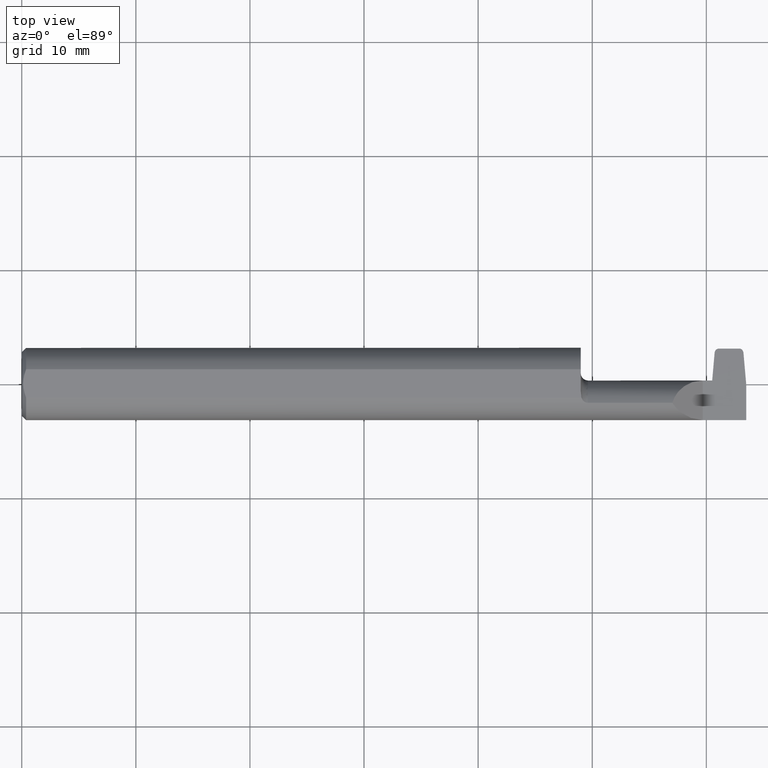
[diagram: clean part render]
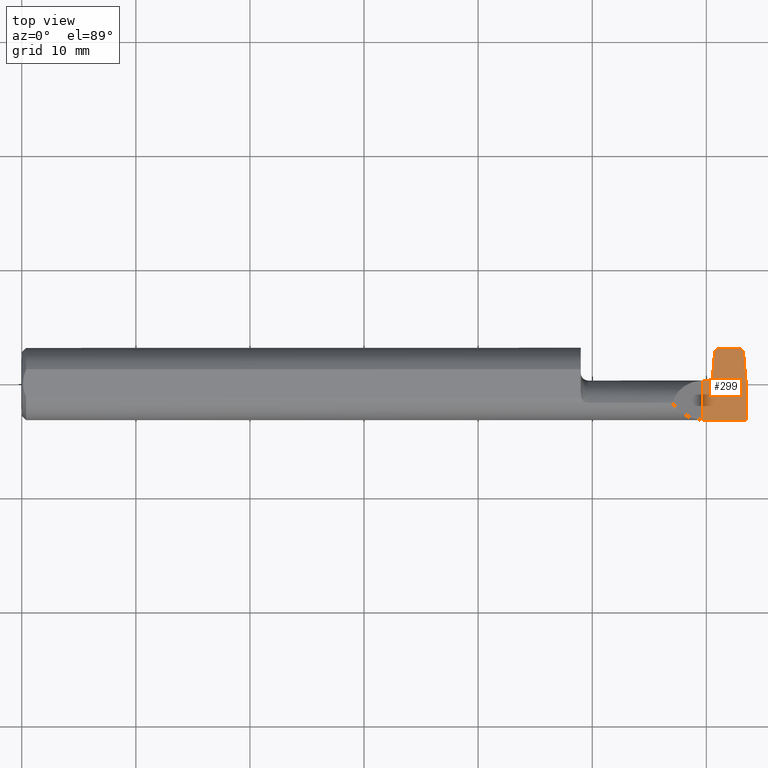
[diagram: same view with one face highlighted and labeled with its STEP entity id]
A machine part, top view. The second image highlights one B-rep face of the part: STEP entity #299.
In plain terms, the highlighted planar face has unit normal (-0, 0, -1).
Its self-contained STEP definition (entity closure, byte-faithful):
#8 = FACE_OUTER_BOUND ( 'NONE', #571, .T. ) ;
#18 = CARTESIAN_POINT ( 'NONE',  ( 2.350000000000000089, 0.1250000000000000000, -2.465075339897404302E-17 ) ) ;
#42 = ORIENTED_EDGE ( 'NONE', *, *, #581, .T. ) ;
#76 = LINE ( 'NONE', #733, #867 ) ;
#78 = CARTESIAN_POINT ( 'NONE',  ( 2.350000000000000089, -0.1248500000000000026, -2.465075339897404302E-17 ) ) ;
#83 = DIRECTION ( 'NONE',  ( -1.000000000000000000, 2.748415254070958379E-15, 0.000000000000000000 ) ) ;
#95 = EDGE_CURVE ( 'NONE', #348, #768, #264, .T. ) ;
#97 = CARTESIAN_POINT ( 'NONE',  ( 2.382440164071409239, 0.01215000000000003230, 0.000000000000000000 ) ) ;
#111 = LINE ( 'NONE', #171, #735 ) ;
#115 = ORIENTED_EDGE ( 'NONE', *, *, #687, .F. ) ;
#116 = DIRECTION ( 'NONE',  ( 0.08715574274765244822, 0.9961946980917459893, 0.000000000000000000 ) ) ;
#121 = CARTESIAN_POINT ( 'NONE',  ( 2.390849541543781154, 0.1082696243428798999, 0.000000000000000000 ) ) ;
#131 = CARTESIAN_POINT ( 'NONE',  ( 2.483716296193213768, 0.1221499999999995228, -1.707404996040164203E-17 ) ) ;
#144 = CARTESIAN_POINT ( 'NONE',  ( 2.500000000000000000, -0.1248499999999999888, -2.465075339897403686E-17 ) ) ;
#152 = CARTESIAN_POINT ( 'NONE',  ( 2.350000000000000089, 0.1250000000000000000, -2.465075339897404302E-17 ) ) ;
#156 = CARTESIAN_POINT ( 'NONE',  ( 2.500000000000000000, -0.1248500000000000026, -2.465075339897404302E-17 ) ) ;
#171 = CARTESIAN_POINT ( 'NONE',  ( 2.500000000000000000, 0.1250000000000000000, -2.465075339897404302E-17 ) ) ;
#175 = LINE ( 'NONE', #854, #513 ) ;
#182 = VERTEX_POINT ( 'NONE', #156 ) ;
#185 = CARTESIAN_POINT ( 'NONE',  ( 2.405414880592574800, 0.1221499999999999669, -2.465075339897404302E-17 ) ) ;
#201 = DIRECTION ( 'NONE',  ( 0.08715574274765255924, -0.9961946980917459893, 0.000000000000000000 ) ) ;
#203 = AXIS2_PLACEMENT_3D ( 'NONE', #18, #749, #817 ) ;
#209 = ORIENTED_EDGE ( 'NONE', *, *, #254, .F. ) ;
#214 = ORIENTED_EDGE ( 'NONE', *, *, #807, .F. ) ;
#218 = VERTEX_POINT ( 'NONE', #599 ) ;
#222 = VERTEX_POINT ( 'NONE', #78 ) ;
#224 = ORIENTED_EDGE ( 'NONE', *, *, #691, .T. ) ;
#233 = ORIENTED_EDGE ( 'NONE', *, *, #742, .F. ) ;
#243 = ORIENTED_EDGE ( 'NONE', *, *, #565, .T. ) ;
#254 = EDGE_CURVE ( 'NONE', #222, #348, #343, .T. ) ;
#264 = LINE ( 'NONE', #452, #763 ) ;
#266 = CARTESIAN_POINT ( 'NONE',  ( 2.381440164071409349, 0.01215000000000003577, 0.000000000000000000 ) ) ;
#267 = VECTOR ( 'NONE', #478, 39.37007874015748143 ) ;
#270 = CARTESIAN_POINT ( 'NONE',  ( 2.475712953525945892, 0.1221499999999997865, -2.465075339897404302E-17 ) ) ;
#287 = ORIENTED_EDGE ( 'NONE', *, *, #554, .F. ) ;
#292 = CARTESIAN_POINT ( 'NONE',  ( 2.350000000000000089, 0.1221500000000001196, -2.465075339897404302E-17 ) ) ;
#299 = ADVANCED_FACE ( 'NONE', ( #8 ), #610, .F. ) ;
#317 = CARTESIAN_POINT ( 'NONE',  ( 2.391577508731532742, 0.1165903273735736934, -3.414809992080329023E-17 ) ) ;
#343 = LINE ( 'NONE', #152, #755 ) ;
#344 = VERTEX_POINT ( 'NONE', #615 ) ;
#348 = VERTEX_POINT ( 'NONE', #544 ) ;
#359 = CARTESIAN_POINT ( 'NONE',  ( 2.500000000000000000, -0.002850000000000199596, 0.000000000000000000 ) ) ;
#364 = ORIENTED_EDGE ( 'NONE', *, *, #95, .F. ) ;
#385 = DIRECTION ( 'NONE',  ( -0.000000000000000000, 1.000000000000000000, -0.000000000000000000 ) ) ;
#396 = DIRECTION ( 'NONE',  ( 1.000000000000000000, -2.134256245050053599E-15, 0.000000000000000000 ) ) ;
#411 = EDGE_CURVE ( 'NONE', #218, #420, #701, .T. ) ;
#420 = VERTEX_POINT ( 'NONE', #489 ) ;
#433 = VERTEX_POINT ( 'NONE', #97 ) ;
#448 = CARTESIAN_POINT ( 'NONE',  ( 2.490278292574739094, 0.1082696243428797889, 0.000000000000000000 ) ) ;
#452 = CARTESIAN_POINT ( 'NONE',  ( 1.929000000000000048, 0.01215000000000003230, -2.465075339897403686E-17 ) ) ;
#478 = DIRECTION ( 'NONE',  ( -1.000000000000000000, -0.000000000000000000, -0.000000000000000000 ) ) ;
#489 = CARTESIAN_POINT ( 'NONE',  ( 2.405414880592574800, 0.1221499999999999669, -2.465075339897404302E-17 ) ) ;
#513 = VECTOR ( 'NONE', #116, 39.37007874015748854 ) ;
#522 = LINE ( 'NONE', #266, #588 ) ;
#530 = CARTESIAN_POINT ( 'NONE',  ( 2.490278292574739094, 0.1082696243428797889, 0.000000000000000000 ) ) ;
#542 = CARTESIAN_POINT ( 'NONE',  ( 2.381440164071409349, 0.01215000000000003577, 0.000000000000000000 ) ) ;
#544 = CARTESIAN_POINT ( 'NONE',  ( 2.350000000000000089, 0.01215000000000004965, -2.465075339897404302E-17 ) ) ;
#552 = VECTOR ( 'NONE', #83, 39.37007874015748143 ) ;
#554 = EDGE_CURVE ( 'NONE', #433, #344, #175, .T. ) ;
#556 = VERTEX_POINT ( 'NONE', #448 ) ;
#565 = EDGE_CURVE ( 'NONE', #182, #841, #111, .T. ) ;
#571 = EDGE_LOOP ( 'NONE', ( #641, #42, #287, #233, #364, #209, #214, #243, #115, #224 ) ) ;
#581 = EDGE_CURVE ( 'NONE', #420, #344, #794, .T. ) ;
#583 = DIRECTION ( 'NONE',  ( 1.000000000000000000, 0.000000000000000000, 0.000000000000000000 ) ) ;
#588 = VECTOR ( 'NONE', #396, 39.37007874015748143 ) ;
#599 = CARTESIAN_POINT ( 'NONE',  ( 2.475712953525945892, 0.1221499999999997865, -2.465075339897404302E-17 ) ) ;
#605 = DIRECTION ( 'NONE',  ( -0.000000000000000000, 1.000000000000000000, -0.000000000000000000 ) ) ;
#610 = PLANE ( 'NONE',  #203 ) ;
#615 = CARTESIAN_POINT ( 'NONE',  ( 2.390849541543781154, 0.1082696243428798999, 0.000000000000000000 ) ) ;
#641 = ORIENTED_EDGE ( 'NONE', *, *, #411, .T. ) ;
#666 =( BOUNDED_CURVE ( )  B_SPLINE_CURVE ( 3, ( #530, #866, #131, #270 ),
 .UNSPECIFIED., .F., .T. ) 
 B_SPLINE_CURVE_WITH_KNOTS ( ( 4, 4 ),
 ( 1.960722919233729655, 3.411297973623212076 ),
 .UNSPECIFIED. ) 
 CURVE ( )  GEOMETRIC_REPRESENTATION_ITEM ( )  RATIONAL_B_SPLINE_CURVE ( ( 1.000000000000000000, 0.8322058143701999144, 0.8322058143701999144, 1.000000000000000000 ) ) 
 REPRESENTATION_ITEM ( '' )  );
#687 = EDGE_CURVE ( 'NONE', #556, #841, #76, .T. ) ;
#691 = EDGE_CURVE ( 'NONE', #556, #218, #666, .T. ) ;
#695 = LINE ( 'NONE', #144, #267 ) ;
#701 = LINE ( 'NONE', #292, #552 ) ;
#720 = CARTESIAN_POINT ( 'NONE',  ( 2.397411537925306924, 0.1221499999999999114, -3.414809992080329023E-17 ) ) ;
#733 = CARTESIAN_POINT ( 'NONE',  ( 2.489063917059260334, 0.1221499999999998004, 0.000000000000000000 ) ) ;
#735 = VECTOR ( 'NONE', #385, 39.37007874015748143 ) ;
#742 = EDGE_CURVE ( 'NONE', #768, #433, #522, .T. ) ;
#749 = DIRECTION ( 'NONE',  ( -0.000000000000000000, 0.000000000000000000, -1.000000000000000000 ) ) ;
#755 = VECTOR ( 'NONE', #605, 39.37007874015748143 ) ;
#763 = VECTOR ( 'NONE', #583, 39.37007874015748143 ) ;
#768 = VERTEX_POINT ( 'NONE', #542 ) ;
#794 =( BOUNDED_CURVE ( )  B_SPLINE_CURVE ( 3, ( #185, #720, #317, #121 ),
 .UNSPECIFIED., .F., .F. ) 
 B_SPLINE_CURVE_WITH_KNOTS ( ( 4, 4 ),
 ( 6.013479987146149064, 7.464055041535659463 ),
 .UNSPECIFIED. ) 
 CURVE ( )  GEOMETRIC_REPRESENTATION_ITEM ( )  RATIONAL_B_SPLINE_CURVE ( ( 1.000000000000000000, 0.8322058143701936972, 0.8322058143701936972, 1.000000000000000000 ) ) 
 REPRESENTATION_ITEM ( '' )  );
#807 = EDGE_CURVE ( 'NONE', #182, #222, #695, .T. ) ;
#817 = DIRECTION ( 'NONE',  ( -1.000000000000000000, 0.000000000000000000, 0.000000000000000000 ) ) ;
#841 = VERTEX_POINT ( 'NONE', #359 ) ;
#854 = CARTESIAN_POINT ( 'NONE',  ( 2.382440164071409239, 0.01215000000000003230, 0.000000000000000000 ) ) ;
#866 = CARTESIAN_POINT ( 'NONE',  ( 2.489550325386987950, 0.1165903273735734297, -1.707404996040164203E-17 ) ) ;
#867 = VECTOR ( 'NONE', #201, 39.37007874015748143 ) ;